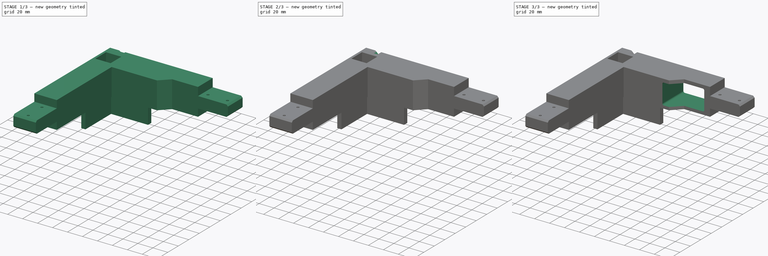
[diagram: build sequence overview — one tinted view per stage of 3, left to right]
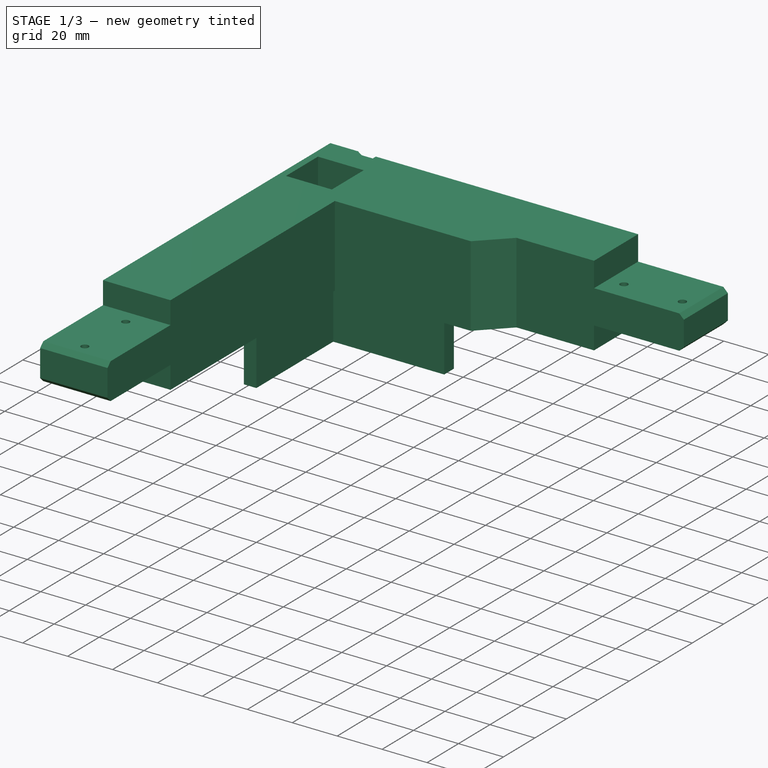
[diagram: stage 1 of 3 — iso view after this stage's code; geometry added in this stage tinted green]
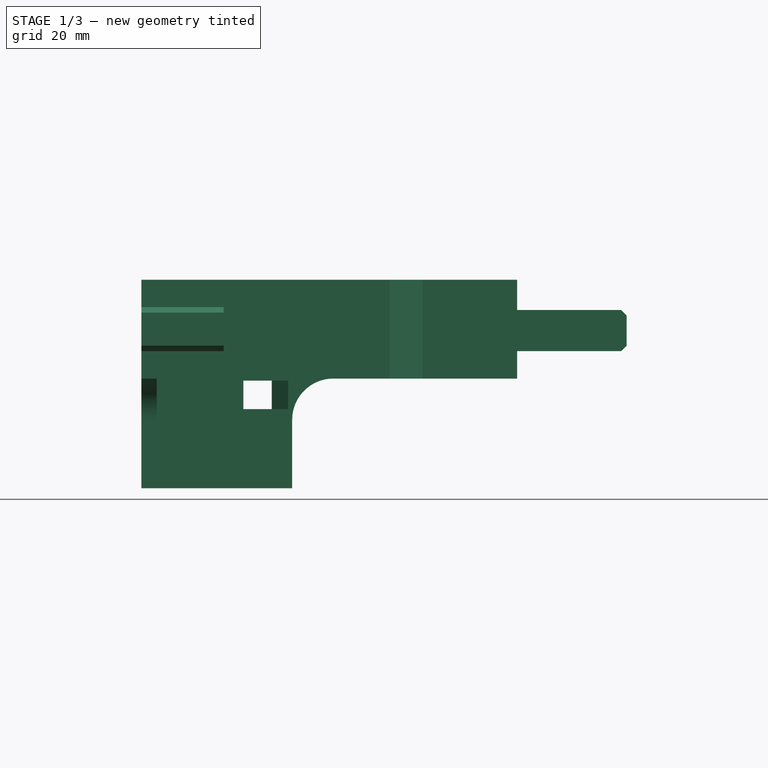
[diagram: stage 1 of 3 — front view after this stage's code; geometry added in this stage tinted green]
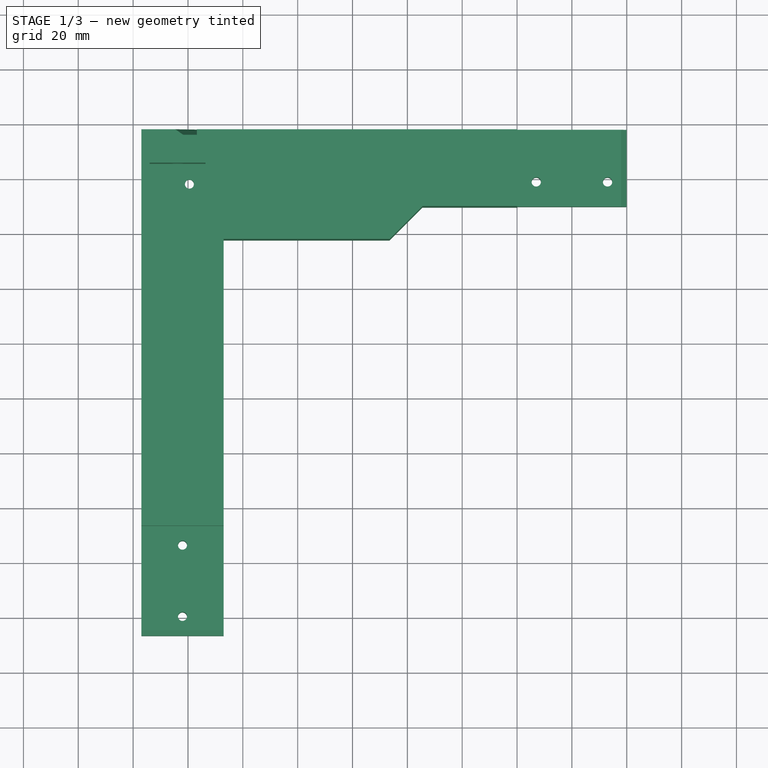
[diagram: stage 1 of 3 — top view after this stage's code; geometry added in this stage tinted green]
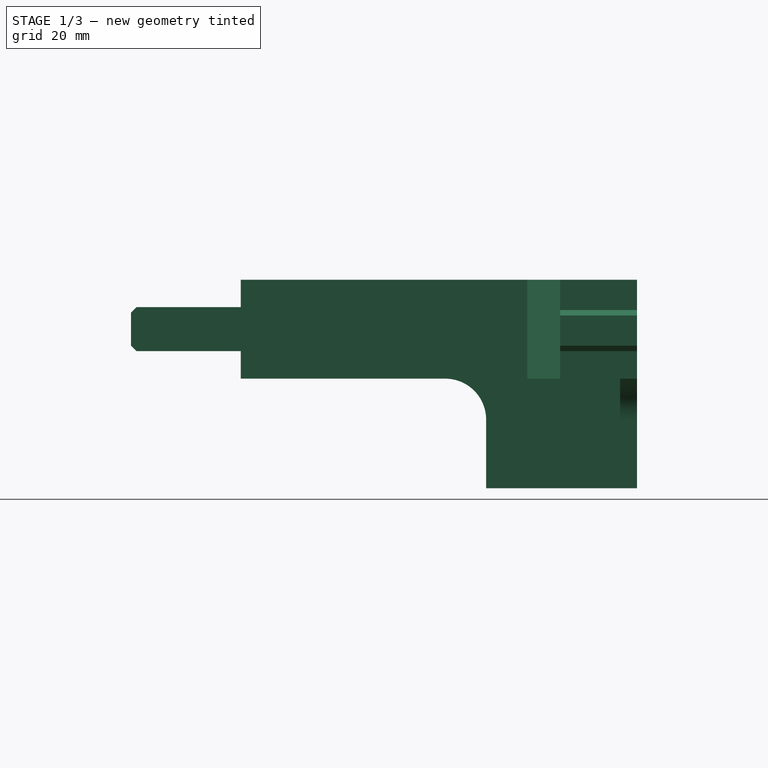
[diagram: stage 1 of 3 — right view after this stage's code; geometry added in this stage tinted green]
FCSTD DOCUMENT  (FreeCAD 2024.2R37179 (Git))
Label: Rear_left_Bottom_Frame
License: All rights reserved
LicenseURL: http://en.wikipedia.org/wiki/All_rights_reserved
objects: PartDesign::Pocket×4, Sketcher::SketchObject×2, Part::FeaturePython×1, PartDesign::FeatureBase×1, PartDesign::Body×1
note: 13 computed .brp shape members not serialized (recipe doc carries the construction recipe); baked Part::Feature solids carry a one-line shape summary decoded from their .brp

FEATURE [Part::FeaturePython] b_Rear_left_Bottom_Frame_001_  label="Rear_left_Bottom_Frame_001"  # a2plus imported part (geometry in sourceFile) (typed FeaturePython)
  Placement = pos=(482.182,45.8,-49.39) rot=(0,0,1;0rad)
  a2p_Version = 0.4.64a
  fixedPosition = false
  objectType = a2pPart
  sourceFile = .\FDM\Rear_left_Bottom_Frame.FCStd
  subassemblyImport = false
  timeLastImport = 1.71718e+09
  updateColors = true
FEATURE [PartDesign::FeatureBase] BaseFeature
  BaseFeature = -> b_Rear_left_Bottom_Frame_001_
  Suppressed = false
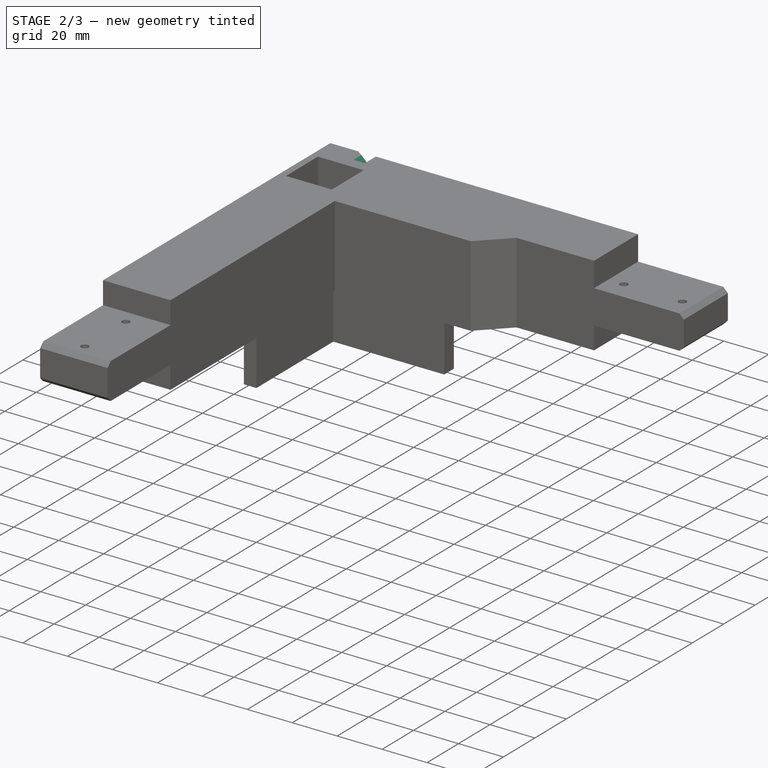
[diagram: stage 2 of 3 — iso view after this stage's code; geometry added in this stage tinted green]
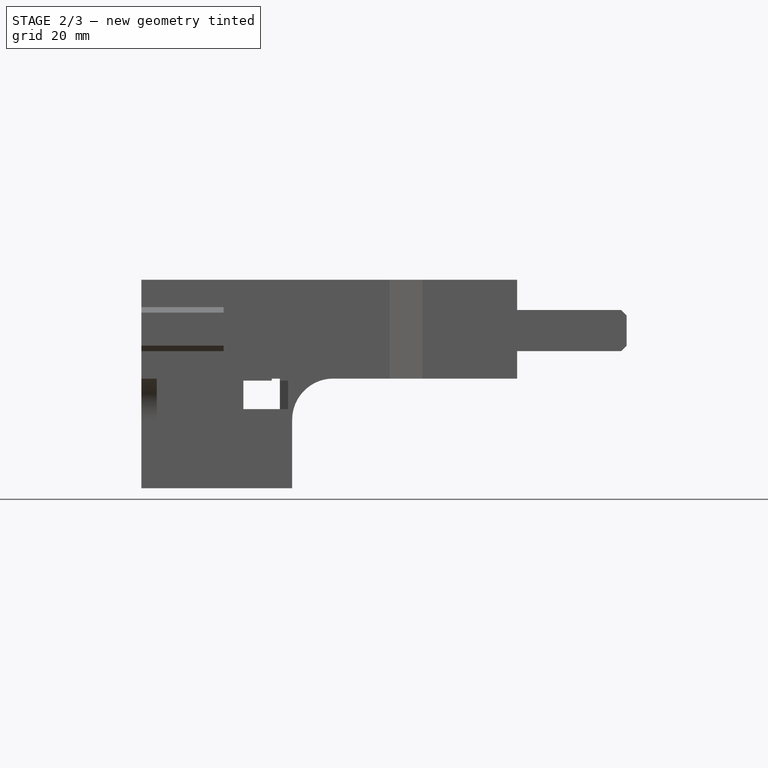
[diagram: stage 2 of 3 — front view after this stage's code; geometry added in this stage tinted green]
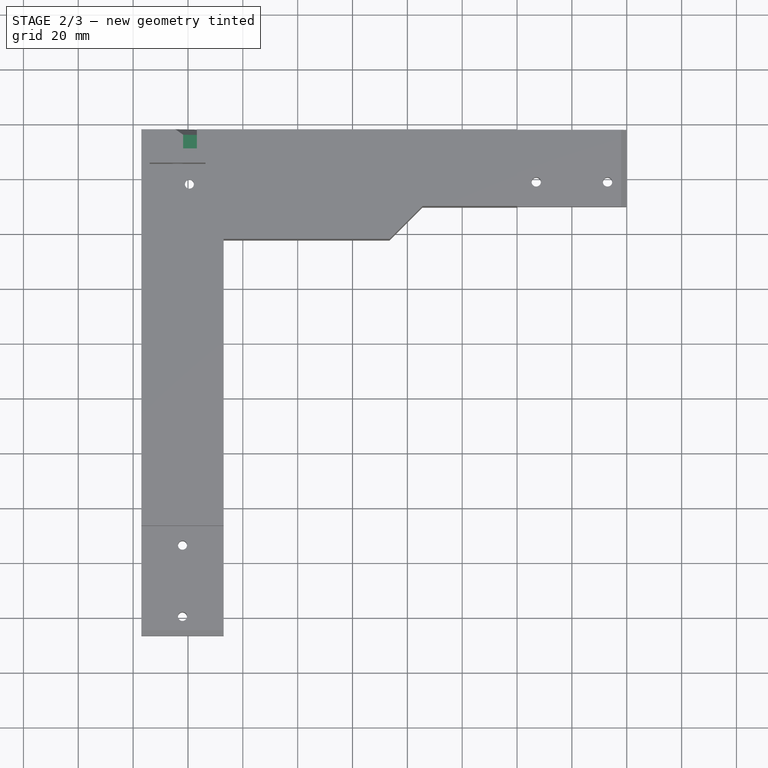
[diagram: stage 2 of 3 — top view after this stage's code; geometry added in this stage tinted green]
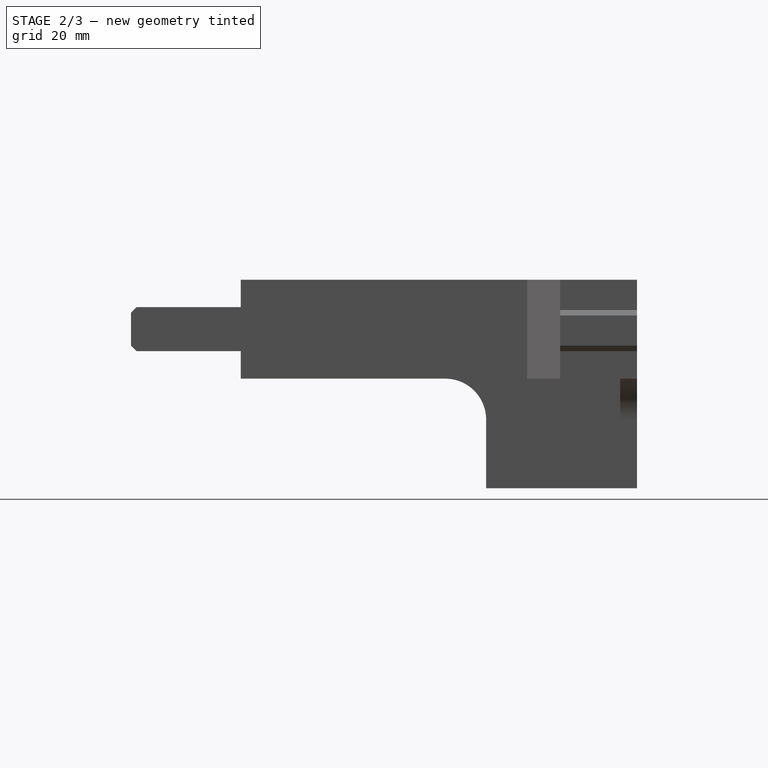
[diagram: stage 2 of 3 — right view after this stage's code; geometry added in this stage tinted green]
FEATURE [Sketcher::SketchObject] Sketch
  AttachmentSupport = -> [BaseFeature]
  FullyConstrained = false
  MapMode = 5
  Placement = pos=(-177,0,0) rot=(0.57735,-0.57735,-0.57735;2.0944rad)
  sketch-geometry (7):
    g0: LineSegment StartX=-116.994 StartY=-182.155 StartZ=0 EndX=-118.607 EndY=-179.363 EndZ=0
    g1: LineSegment StartX=-118.607 StartY=-179.363 StartZ=0 EndX=-121.831 EndY=-179.363 EndZ=0
    g2: LineSegment StartX=-121.831 StartY=-179.363 StartZ=0 EndX=-123.443 EndY=-182.155 EndZ=0
    g3: LineSegment StartX=-123.443 StartY=-182.155 StartZ=0 EndX=-121.831 EndY=-184.948 EndZ=0
    g4: LineSegment StartX=-121.831 StartY=-184.948 StartZ=0 EndX=-118.607 EndY=-184.948 EndZ=0
    g5: LineSegment StartX=-118.607 StartY=-184.948 StartZ=0 EndX=-116.994 EndY=-182.155 EndZ=0
    g6: Circle CenterX=-120.219 CenterY=-182.155 CenterZ=0 NormalX=0 NormalY=0 NormalZ=1 AngleXU=0 Radius=3.2245
  constraints (14):
    c: Coincident(g0,g1)
    c: Coincident(g1,g2)
    c: Coincident(g2,g3)
    c: Coincident(g3,g4)
    c: Coincident(g4,g5)
    c: Coincident(g5,g0)
    c: Equal(g0, g1-g5) x5
    c: PointOnObject(g0,g6)
    c: PointOnObject(g1,g6)
    c: PointOnObject(g2,g6)
    c: PointOnObject(g3,g6)
    c: PointOnObject(g4,g6)
    c: PointOnObject(g5,g6)
    c: Radius(g6) = 3.2245
FEATURE [PartDesign::Pocket] Pocket
  BaseFeature = -> BaseFeature
  Direction = (1,0,0)
  Length = 5
  Length2 = 5
  Profile = -> Sketch
  ReferenceAxis = -> Sketch [N_Axis]
  Refine = true
  Suppressed = false
  Type = 0
FEATURE [PartDesign::Pocket] Pocket001
  BaseFeature = -> Pocket
  Direction = (-7e-16,-1,0)
  Length = 5
  Length2 = 5
  Profile = -> Pocket [Face7]
  Refine = true
  Suppressed = false
  Type = 0
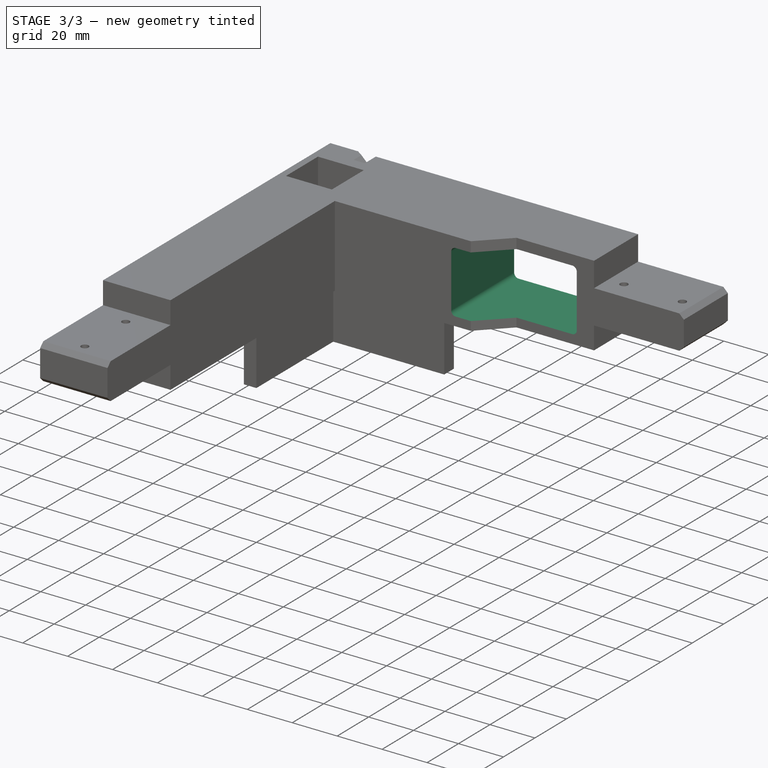
[diagram: stage 3 of 3 — iso view after this stage's code; geometry added in this stage tinted green]
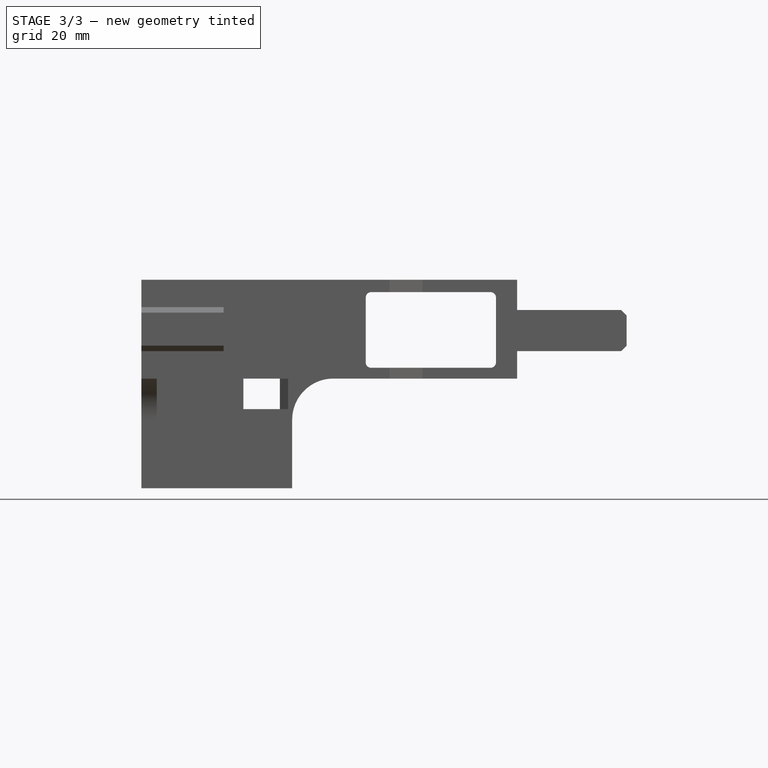
[diagram: stage 3 of 3 — front view after this stage's code; geometry added in this stage tinted green]
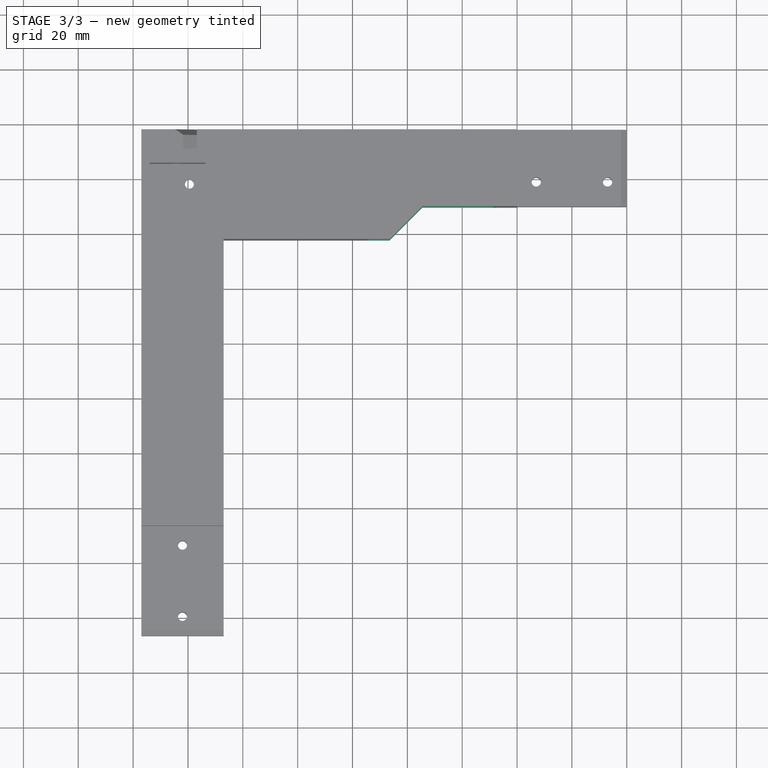
[diagram: stage 3 of 3 — top view after this stage's code; geometry added in this stage tinted green]
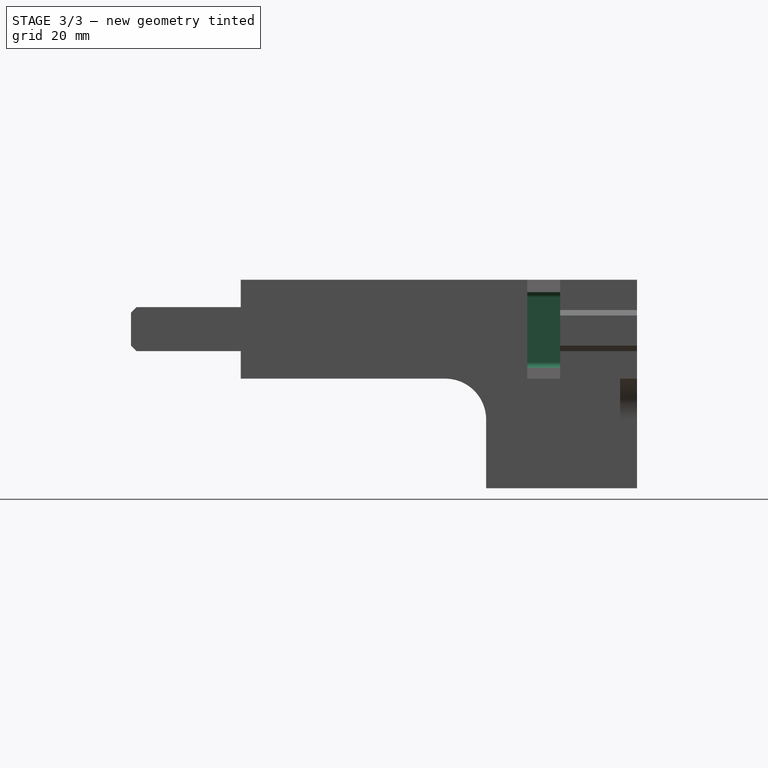
[diagram: stage 3 of 3 — right view after this stage's code; geometry added in this stage tinted green]
FEATURE [PartDesign::Pocket] Pocket002
  BaseFeature = -> Pocket001
  Direction = (8e-16,2.1e-15,1)
  Length = 0
  Length2 = 5
  Profile = -> Pocket001 [Face16,Face30]
  Refine = true
  Suppressed = false
  Type = 3
  UpToFace = -> Pocket001 [Face19]
FEATURE [Sketcher::SketchObject] Sketch001
  AttachmentSupport = -> [Pocket002]
  FullyConstrained = false
  MapMode = 5
  Placement = pos=(-3.55e-14,197,-7.09e-14) rot=(0,0.707107,0.707107;3.14159rad)
  sketch-geometry (12):
    g0: LineSegment StartX=47.6876 StartY=-170.471 StartZ=0 EndX=47.6876 EndY=-194.071 EndZ=0
    g1: LineSegment StartX=49.6876 StartY=-196.071 StartZ=0 EndX=93.1876 EndY=-196.071 EndZ=0
    g2: LineSegment StartX=95.1876 StartY=-194.071 StartZ=0 EndX=95.1876 EndY=-170.471 EndZ=0
    g3: LineSegment StartX=93.1876 StartY=-168.471 StartZ=0 EndX=49.6876 EndY=-168.471 EndZ=0
    g4: ArcOfCircle CenterX=49.6876 CenterY=-170.471 CenterZ=0 NormalX=0 NormalY=0 NormalZ=1 AngleXU=0 Radius=2 StartAngle=1.5708 EndAngle=3.14159
    g5: GeomPoint X=47.6876 Y=-168.471 Z=0
    g6: ArcOfCircle CenterX=93.1876 CenterY=-170.471 CenterZ=0 NormalX=0 NormalY=0 NormalZ=1 AngleXU=0 Radius=2 StartAngle=-1.8e-15 EndAngle=1.5708
    g7: GeomPoint X=95.1876 Y=-168.471 Z=0
    g8: ArcOfCircle CenterX=93.1876 CenterY=-194.071 CenterZ=0 NormalX=0 NormalY=0 NormalZ=1 AngleXU=0 Radius=2 StartAngle=4.71239 EndAngle=6.28319
    g9: GeomPoint X=95.1876 Y=-196.071 Z=0
    g10: ArcOfCircle CenterX=49.6876 CenterY=-194.071 CenterZ=0 NormalX=0 NormalY=0 NormalZ=1 AngleXU=0 Radius=2 StartAngle=3.14159 EndAngle=4.71239
    g11: GeomPoint X=47.6876 Y=-196.071 Z=0
  constraints (26):
    c: Vertical(g0)
    c: Vertical(g2)
    c: Horizontal(g1)
    c: Horizontal(g3)
    c: Distance(g5,g7) = 47.5
    c: Distance(g11,g5) = 27.6
    c: PointOnObject(g5,g0)
    c: PointOnObject(g5,g3)
    c: Tangent(g0,g4) = -1.5708
    c: Tangent(g3,g4) = -1.5708
    c: Radius(g4) = 2
    c: PointOnObject(g7,g2)
    c: PointOnObject(g7,g3)
    c: Tangent(g2,g6) = -1.5708
    c: Tangent(g3,g6) = -1.5708
    c: PointOnObject(g9,g1)
    c: PointOnObject(g9,g2)
    c: Tangent(g1,g8) = -1.5708
    c: Tangent(g2,g8) = -1.5708
    c: PointOnObject(g11,g0)
    c: PointOnObject(g11,g1)
    c: Tangent(g0,g10) = -1.5708
    c: Tangent(g1,g10) = -1.5708
    c: Radius(g6) = 2
    c: Radius(g8) = 2
    c: Radius(g10) = 2
FEATURE [PartDesign::Pocket] Pocket003
  BaseFeature = -> Pocket002
  Direction = (0,-1,2e-16)
  Length = 5
  Length2 = 5
  Profile = -> Sketch001
  ReferenceAxis = -> Sketch001 [N_Axis]
  Refine = true
  Suppressed = false
  Type = 1
FEATURE [PartDesign::Body] Body
  BaseFeature = -> b_Rear_left_Bottom_Frame_001_
  Group = -> [BaseFeature,Sketch,Pocket,Pocket001,Pocket002,Sketch001,Pocket003]
  Origin = -> Origin
  Placement = pos=(482.46,45.85,-49.129) rot=(0,0,1;0rad)
  Tip = -> Pocket003
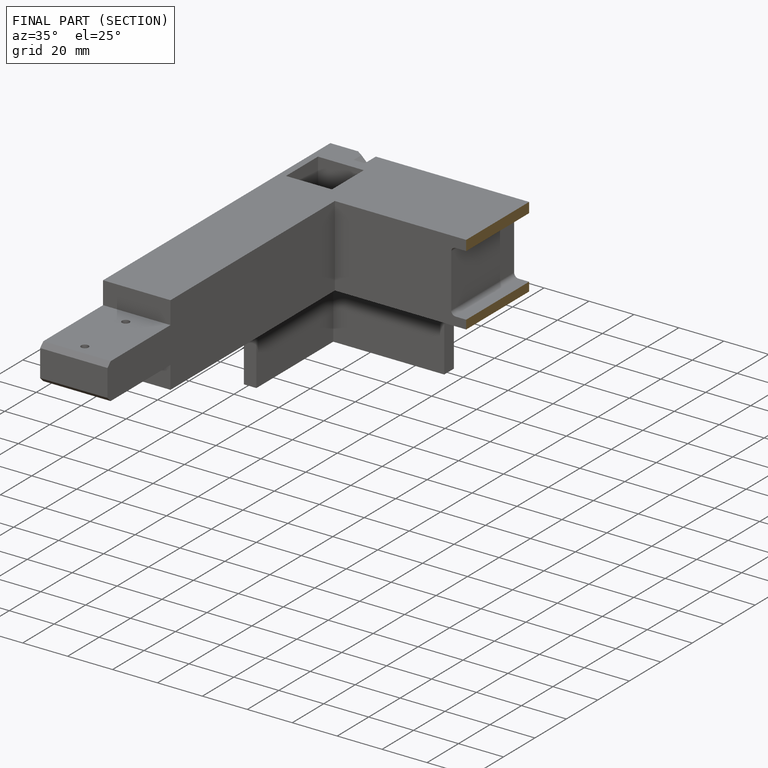
[diagram: finished part — half-section view (interior)]
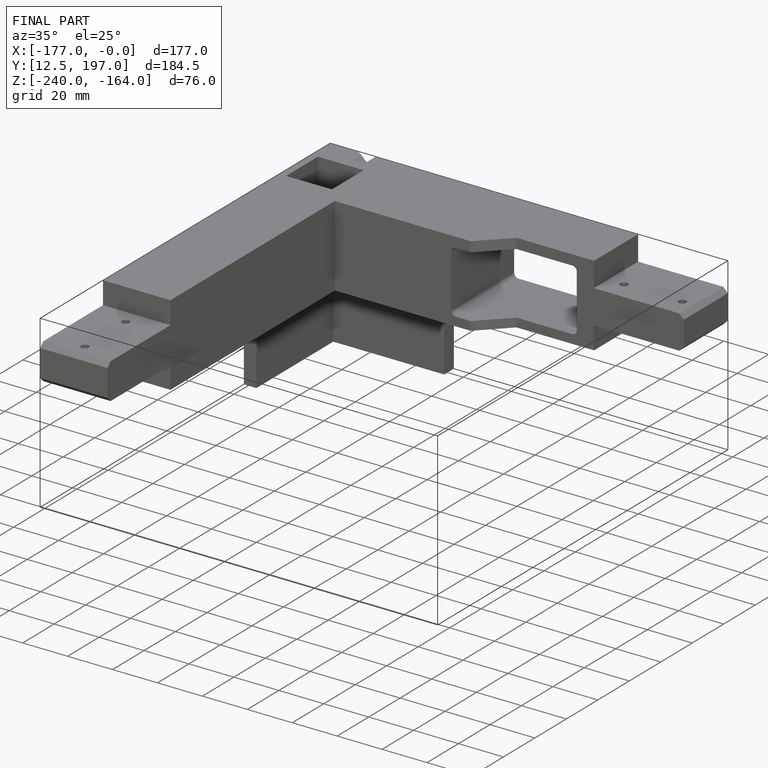
[diagram: finished part — iso view with bounding-box wireframe]
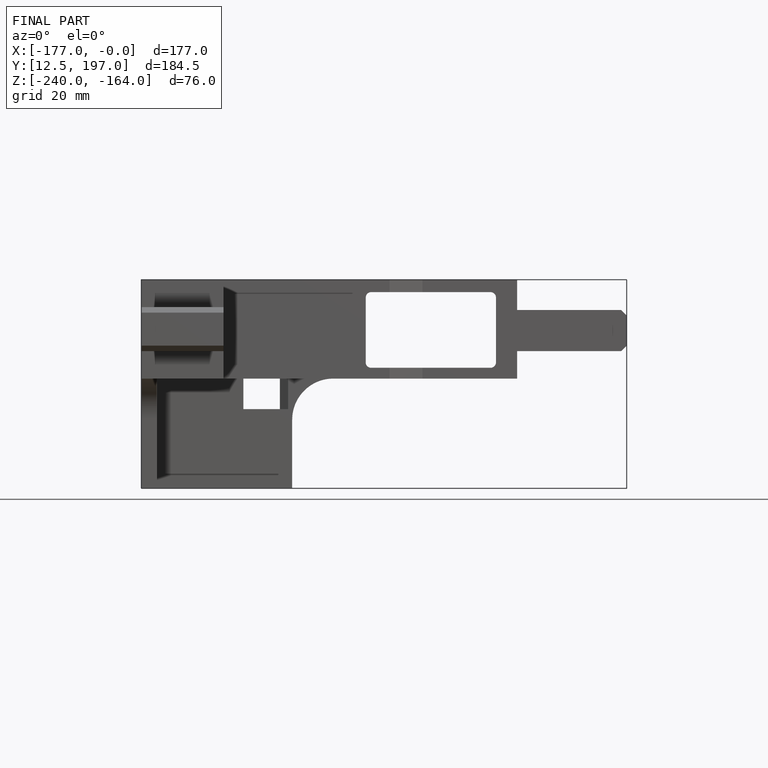
[diagram: finished part — front view with bounding-box wireframe]
